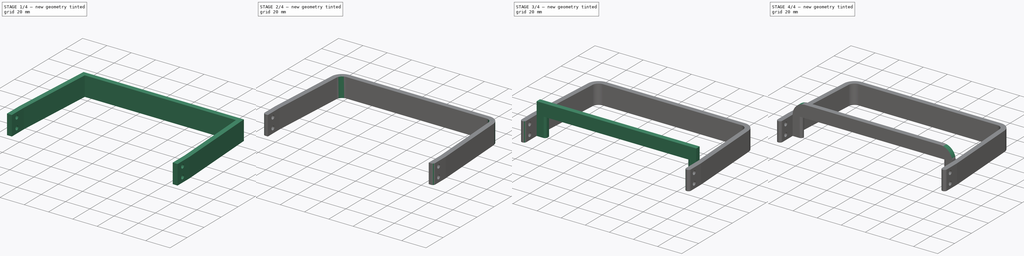
[diagram: build sequence overview — one tinted view per stage of 4, left to right]
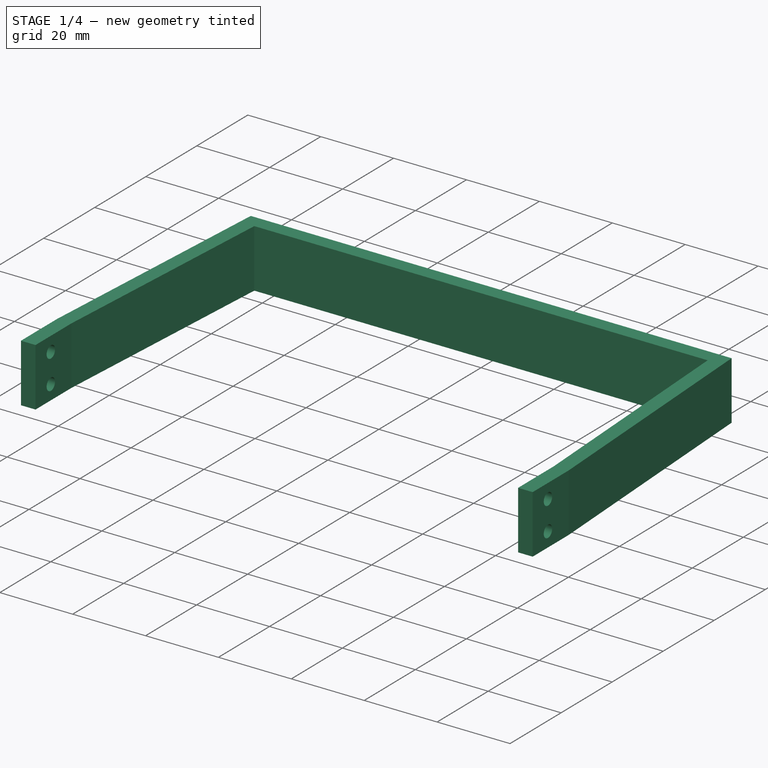
[diagram: stage 1 of 4 — iso view after this stage's code; geometry added in this stage tinted green]
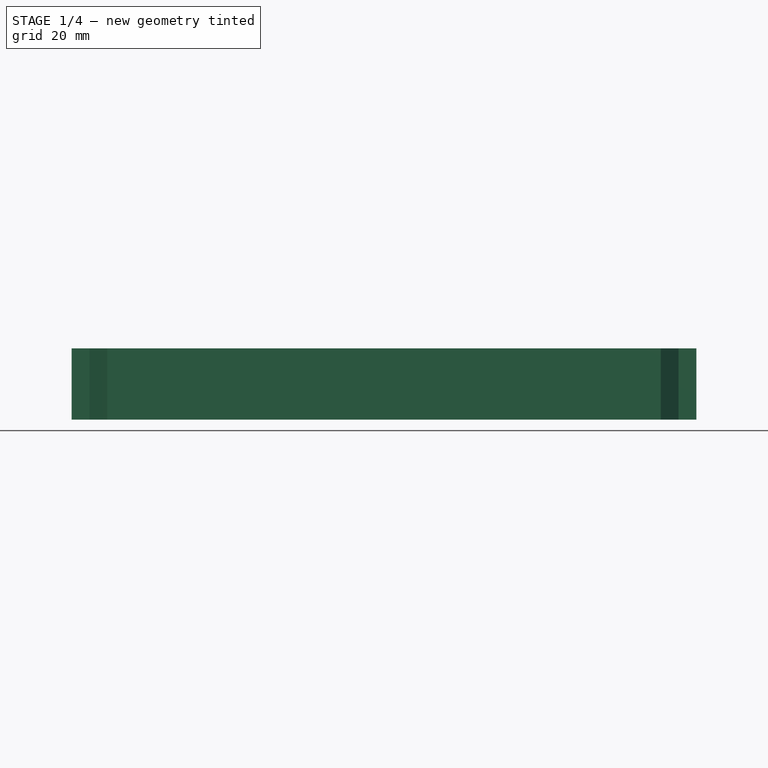
[diagram: stage 1 of 4 — front view after this stage's code; geometry added in this stage tinted green]
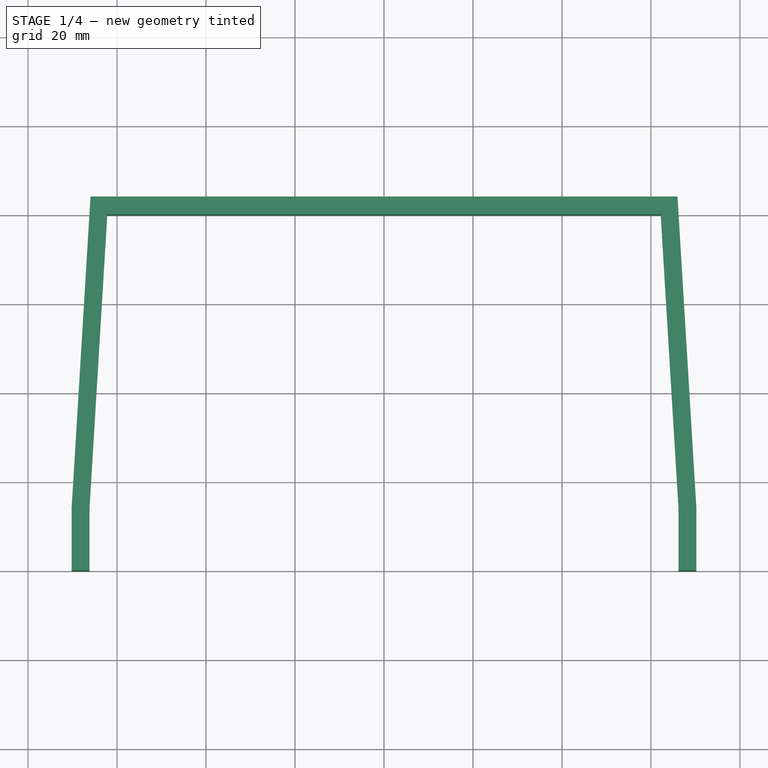
[diagram: stage 1 of 4 — top view after this stage's code; geometry added in this stage tinted green]
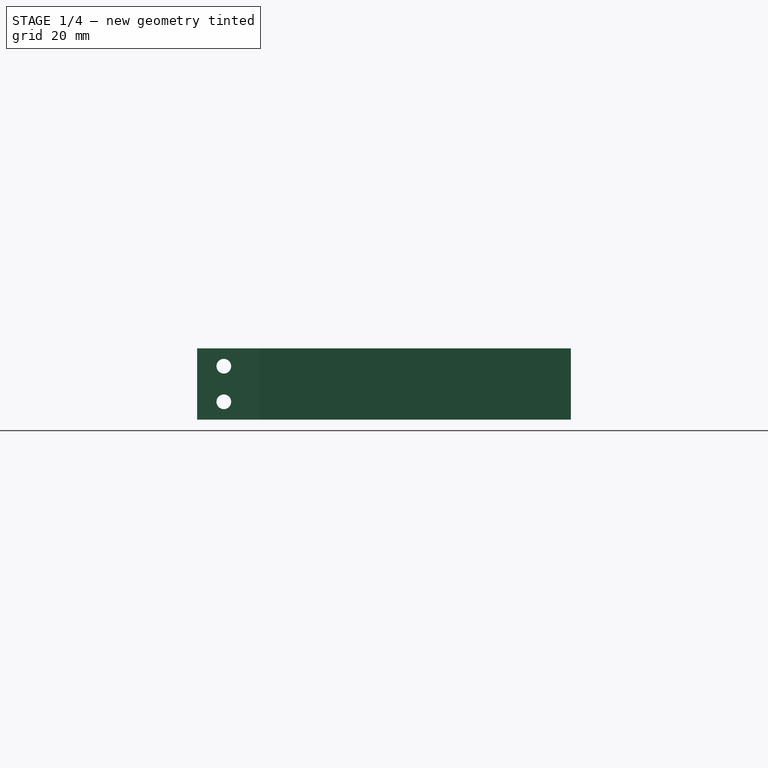
[diagram: stage 1 of 4 — right view after this stage's code; geometry added in this stage tinted green]
FCSTD DOCUMENT  (FreeCAD 0.18R16131 (Git))
Label: TopHandle
License: All rights reserved
LicenseURL: http://en.wikipedia.org/wiki/All_rights_reserved
objects: PartDesign::Fillet×7, Sketcher::SketchObject×3, PartDesign::Pad×2, PartDesign::Pocket×1, PartDesign::Plane×1, PartDesign::Body×1, App::Part×1
note: 18 computed .brp shape members not serialized (recipe doc carries the construction recipe); baked Part::Feature solids carry a one-line shape summary decoded from their .brp

FEATURE [Sketcher::SketchObject] Sketch
  MapMode = 5
  Support = -> [XY_Plane001]
  sketch-geometry (12):
    g0: LineSegment StartX=-70.2 StartY=0 StartZ=0 EndX=-66.2 EndY=0 EndZ=0
    g1: LineSegment StartX=-66.2 StartY=0 StartZ=0 EndX=-66.2 EndY=14 EndZ=0
    g2: LineSegment StartX=-70.2 StartY=14.1211 StartZ=0 EndX=-70.2 EndY=0 EndZ=0
    g3: LineSegment StartX=66.2 StartY=0 StartZ=0 EndX=70.2 EndY=0 EndZ=0
    g4: LineSegment StartX=70.2 StartY=0 StartZ=0 EndX=70.2 EndY=14.1211 EndZ=0
    g5: LineSegment StartX=66.2 StartY=14 StartZ=0 EndX=66.2 EndY=0 EndZ=0
    g6: LineSegment StartX=-66.2 StartY=14 StartZ=0 EndX=-62.2 EndY=80 EndZ=0
    g7: LineSegment StartX=66.2 StartY=14 StartZ=0 EndX=62.2 EndY=80 EndZ=0
    g8: LineSegment StartX=-62.2 StartY=80 StartZ=0 EndX=62.2 EndY=80 EndZ=0
    g9: LineSegment StartX=-70.2 StartY=14.1211 StartZ=0 EndX=-65.9649 EndY=84 EndZ=0
    g10: LineSegment StartX=-65.9649 StartY=84 StartZ=0 EndX=65.9649 EndY=84 EndZ=0
    g11: LineSegment StartX=65.9649 StartY=84 StartZ=0 EndX=70.2 EndY=14.1211 EndZ=0
  constraints (33):
    c: Coincident(g0,g1)
    c: Coincident(g2,g0)
    c: Horizontal(g0)
    c: Vertical(g1)
    c: Vertical(g2)
    c: PointOnObject(g0,g-1)
    c: Coincident(g3,g4)
    c: Coincident(g5,g3)
    c: Horizontal(g3)
    c: Vertical(g4)
    c: Vertical(g5)
    c: Coincident(g6,g1)
    c: Coincident(g7,g5)
    c: Coincident(g8,g6)
    c: Coincident(g8,g7)
    c: Coincident(g9,g2)
    c: Coincident(g10,g9)
    c: Coincident(g11,g10)
    c: Coincident(g11,g4)
    c: Distance(g1) = 14
    c: Equal(g0,g3)
    c: Symmetric(g0,g3,g-2)
    c: Distance(g0,g3) = 132.4
    c: Symmetric(g6,g7,g-2)
    c: Symmetric(g9,g10,g-2)
    c: Distance(g6,g10) = 4
    c: Distance(g6,g9) = 4
    c: Parallel(g7,g11)
    c: Parallel(g6,g9)
    c: Distance(g0) = 4
    c: DistanceX(g0,g6) = 4
    c: Equal(g5,g1)
    c: DistanceY(g-1,g6) = 80
FEATURE [PartDesign::Pad] Pad
  Length = 16
  Length2 = 100
  Midplane = true
  Profile = -> Sketch
  Type = 0
FEATURE [Sketcher::SketchObject] Sketch001
  MapMode = 5
  Placement = pos=(0,0,0) rot=(0.57735,0.57735,0.57735;2.0944rad)
  Support = -> [YZ_Plane001]
  sketch-geometry (2):
    g0: Circle CenterX=6 CenterY=4 CenterZ=0 NormalX=0 NormalY=0 NormalZ=1 AngleXU=0 Radius=1.65
    g1: Circle CenterX=6 CenterY=-4 CenterZ=0 NormalX=0 NormalY=0 NormalZ=1 AngleXU=0 Radius=1.65
  constraints (5):
    c: Symmetric(g0,g1,g-1)
    c: Equal(g0,g1)
    c: Radius(g0) = 1.65
    c: Distance(g0,g1) = 8
    c: DistanceX(g-2,g0) = 6
FEATURE [PartDesign::Pocket] Pocket
  BaseFeature = -> Pad
  Length = 5
  Length2 = 100
  Midplane = true
  Profile = -> Sketch001
  Type = 1
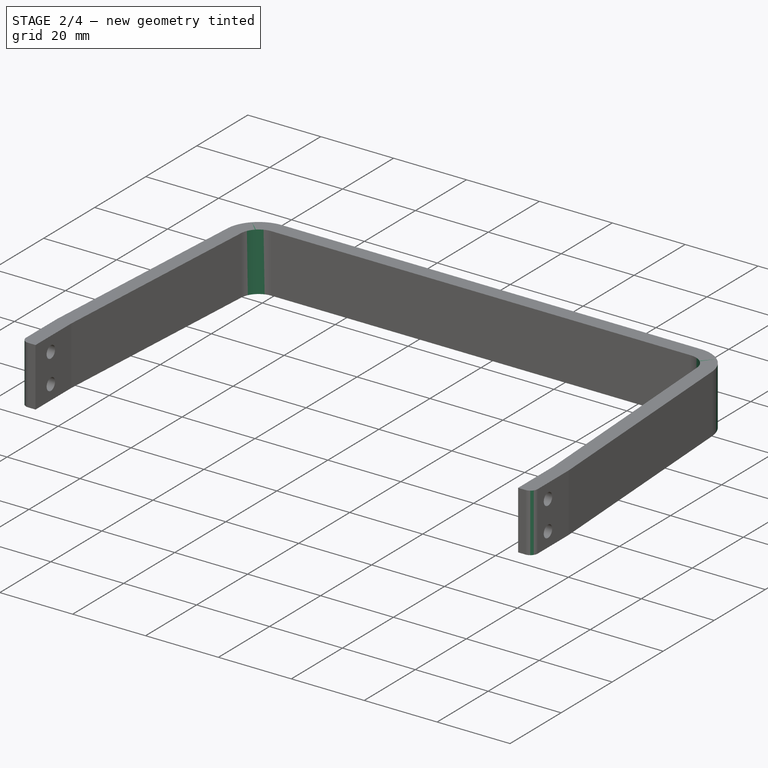
[diagram: stage 2 of 4 — iso view after this stage's code; geometry added in this stage tinted green]
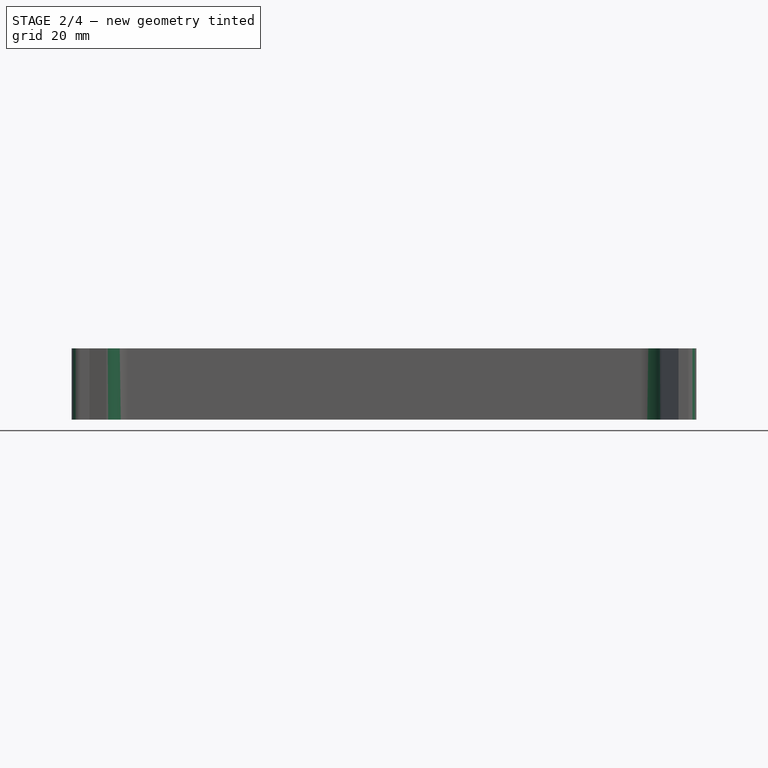
[diagram: stage 2 of 4 — front view after this stage's code; geometry added in this stage tinted green]
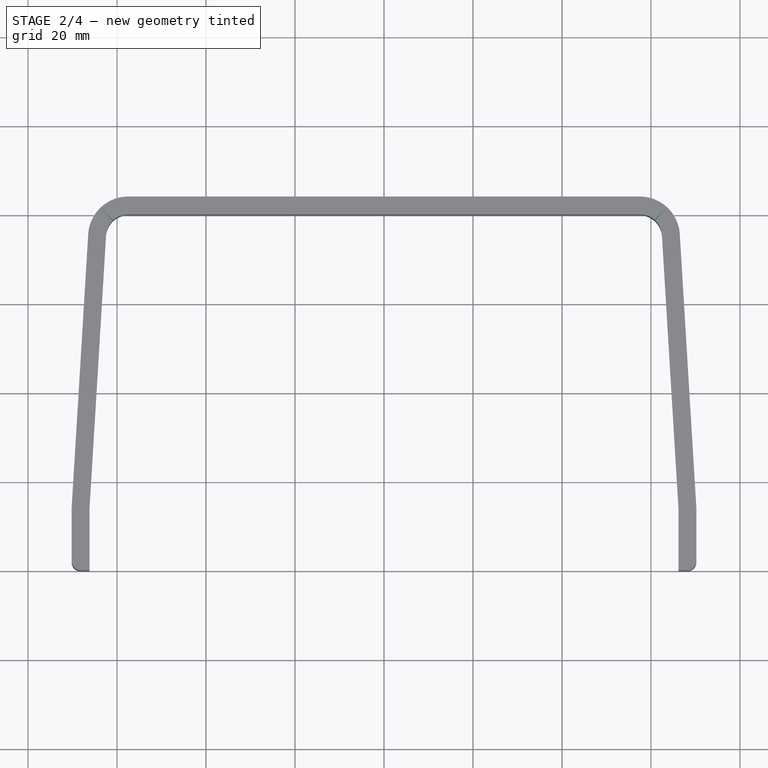
[diagram: stage 2 of 4 — top view after this stage's code; geometry added in this stage tinted green]
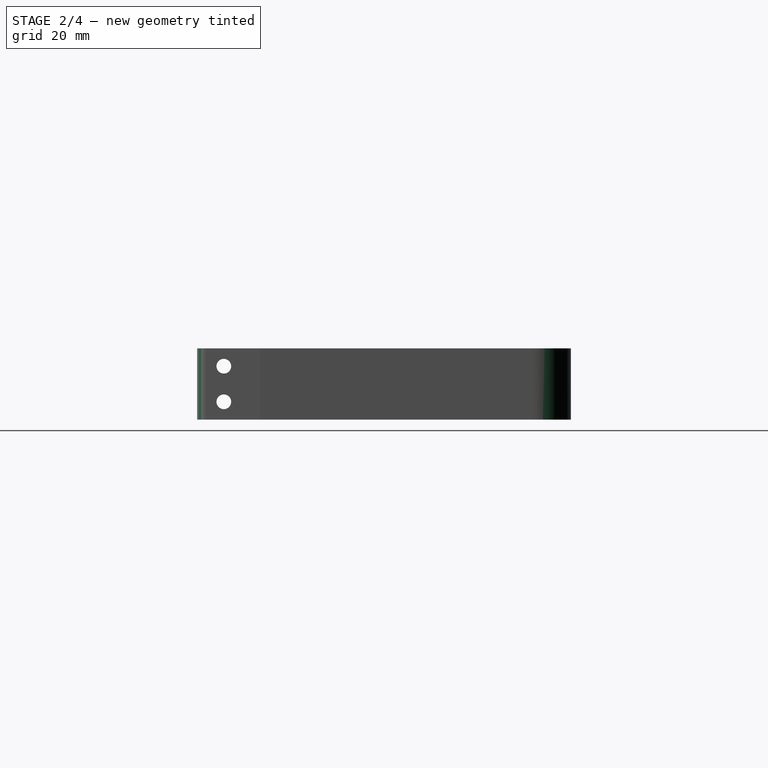
[diagram: stage 2 of 4 — right view after this stage's code; geometry added in this stage tinted green]
FEATURE [PartDesign::Fillet] Fillet001
  Base = -> Pocket [Edge7,Edge35]
  BaseFeature = -> Pocket
  Radius = 9
FEATURE [PartDesign::Fillet] Fillet002
  Base = -> Fillet001 [Edge45,Edge46]
  BaseFeature = -> Fillet001
  Radius = 5
FEATURE [PartDesign::Fillet] Fillet003
  Base = -> Fillet002 [Edge46,Edge28]
  BaseFeature = -> Fillet002
  Radius = 2
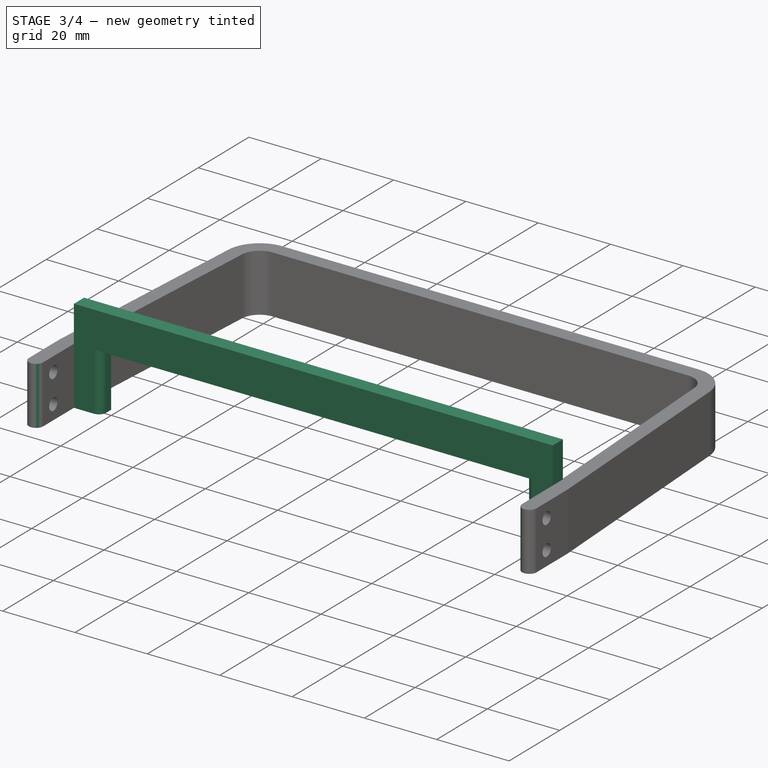
[diagram: stage 3 of 4 — iso view after this stage's code; geometry added in this stage tinted green]
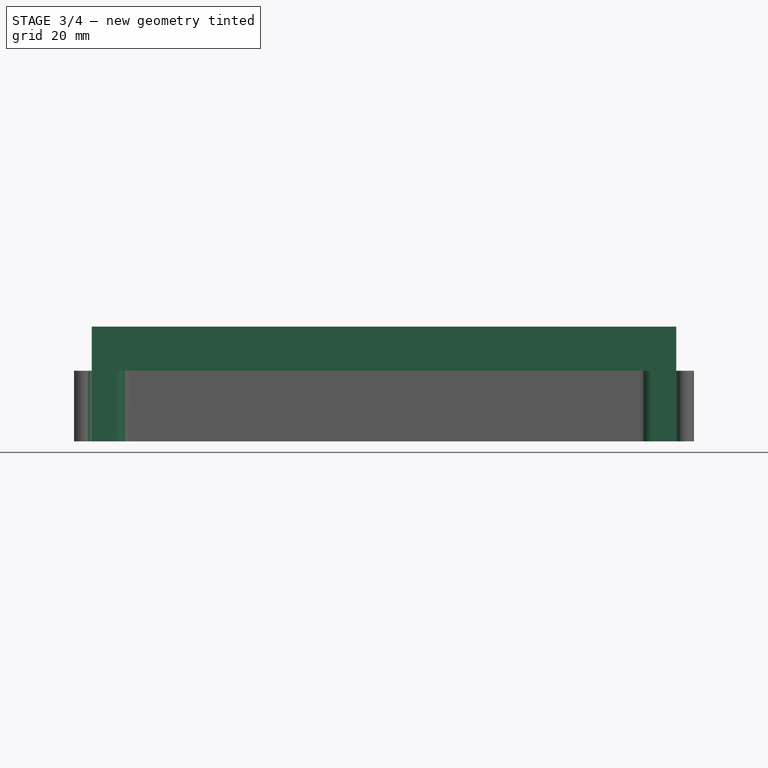
[diagram: stage 3 of 4 — front view after this stage's code; geometry added in this stage tinted green]
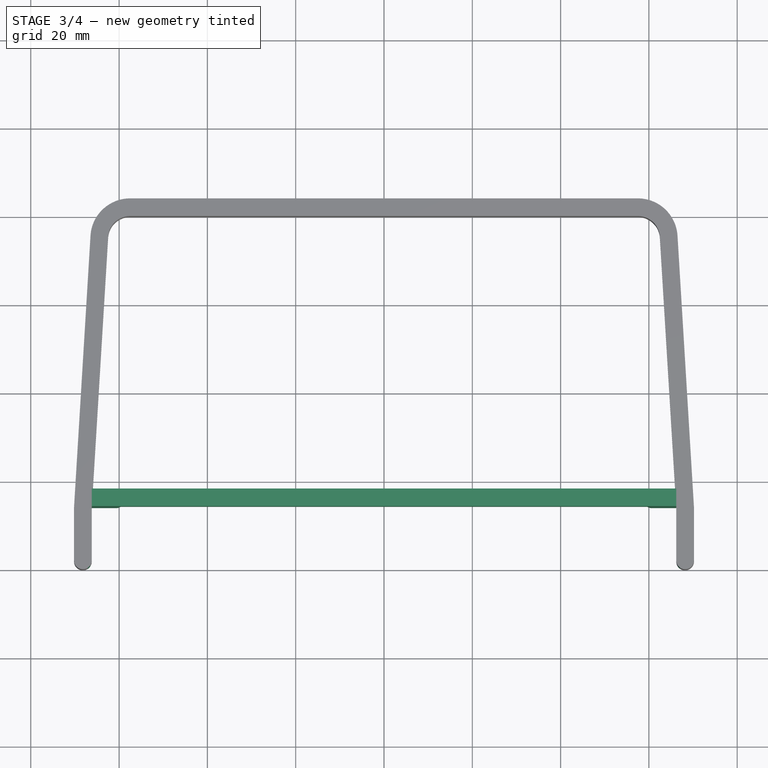
[diagram: stage 3 of 4 — top view after this stage's code; geometry added in this stage tinted green]
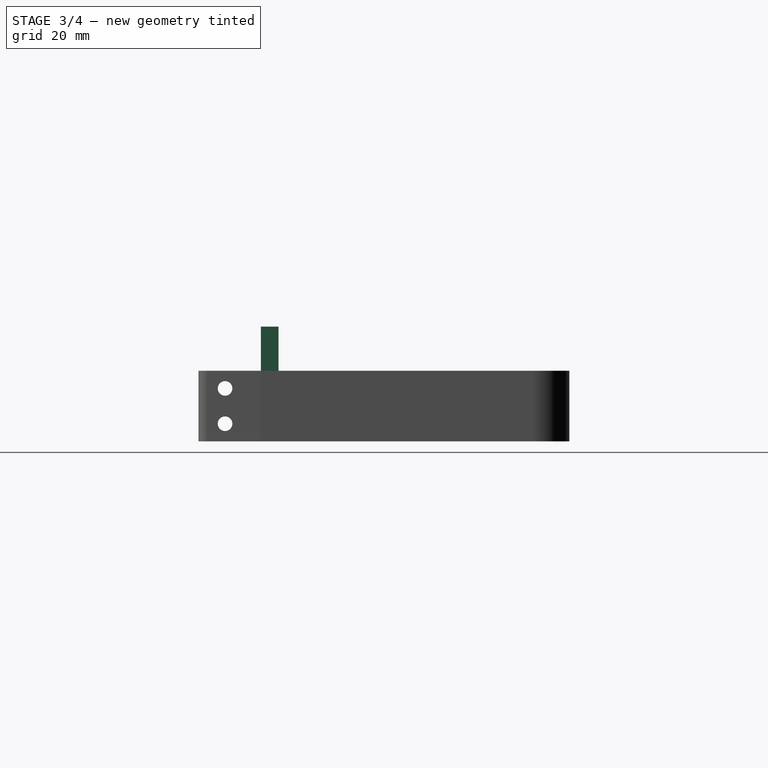
[diagram: stage 3 of 4 — right view after this stage's code; geometry added in this stage tinted green]
FEATURE [PartDesign::Fillet] Fillet004
  Base = -> Fillet003 [Edge52,Edge20]
  BaseFeature = -> Fillet003
  Radius = 1.99
FEATURE [PartDesign::Plane] DatumPlane
  AttachmentOffset = pos=(0,0,-14.1) rot=(0,0,1;0rad)
  Length = 152.94
  MapMode = 5
  Placement = pos=(0,14.1,3.1e-15) rot=(1,0,0;1.5708rad)
  ResizeMode = 0
  Support = -> [XZ_Plane001]
  Width = 40.5399
FEATURE [Sketcher::SketchObject] Sketch002
  MapMode = 5
  Placement = pos=(0,14.1,3.1e-15) rot=(1,0,0;1.5708rad)
  Support = -> [DatumPlane]
  sketch-geometry (8):
    g0: LineSegment StartX=-58.7 StartY=-8 StartZ=0 EndX=-66.2 EndY=-8 EndZ=0
    g1: LineSegment StartX=-66.2 StartY=-8 StartZ=0 EndX=-66.2 EndY=18 EndZ=0
    g2: LineSegment StartX=-58.7 StartY=8 StartZ=0 EndX=-58.7 EndY=-8 EndZ=0
    g3: LineSegment StartX=66.2 StartY=-8 StartZ=0 EndX=58.7 EndY=-8 EndZ=0
    g4: LineSegment StartX=58.7 StartY=-8 StartZ=0 EndX=58.7 EndY=8 EndZ=0
    g5: LineSegment StartX=66.2 StartY=-8 StartZ=0 EndX=66.2 EndY=18 EndZ=0
    g6: LineSegment StartX=66.2 StartY=18 StartZ=0 EndX=-66.2 EndY=18 EndZ=0
    g7: LineSegment StartX=-58.7 StartY=8 StartZ=0 EndX=58.7 EndY=8 EndZ=0
  constraints (21):
    c: Coincident(g0,g1)
    c: Coincident(g2,g0)
    c: Horizontal(g0)
    c: Vertical(g1)
    c: Coincident(g3,g4)
    c: Vertical(g4)
    c: Coincident(g5,g6)
    c: Horizontal(g6)
    c: Vertical(g5)
    c: Coincident(g5,g3)
    c: Coincident(g7,g2)
    c: Coincident(g7,g4)
    c: Horizontal(g7)
    c: Symmetric(g0,g3,g-2)
    c: Symmetric(g0,g3,g-2)
    c: Coincident(g1,g6)
    c: Distance(g0) = 7.5
    c: Symmetric(g0,g2,g-1)
    c: Distance(g2) = 16
    c: Distance(g6) = 132.4
    c: Distance(g1) = 26
FEATURE [PartDesign::Pad] Pad001
  BaseFeature = -> Fillet004
  Length = 4
  Length2 = 100
  Profile = -> Sketch002
  Reversed = true
  Type = 0
FEATURE [PartDesign::Fillet] Fillet005
  Base = -> Pad001 [Edge100,Edge94]
  BaseFeature = -> Pad001
  Radius = 1.99
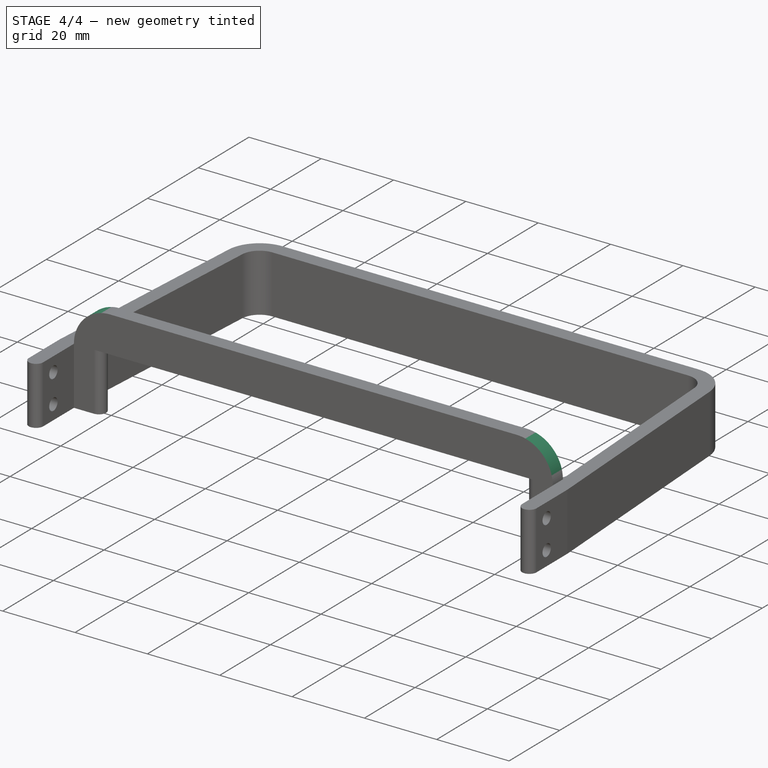
[diagram: stage 4 of 4 — iso view after this stage's code; geometry added in this stage tinted green]
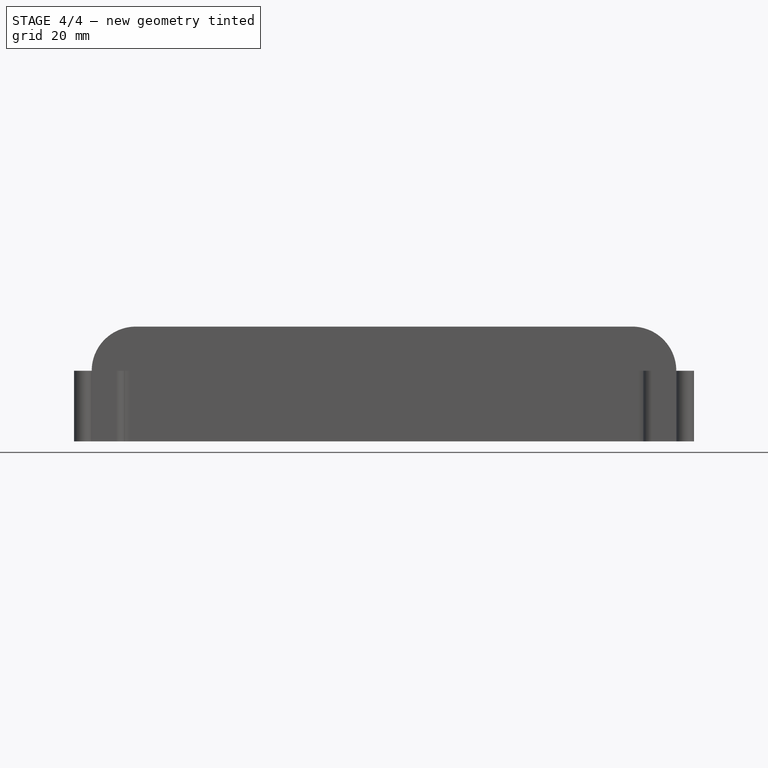
[diagram: stage 4 of 4 — front view after this stage's code; geometry added in this stage tinted green]
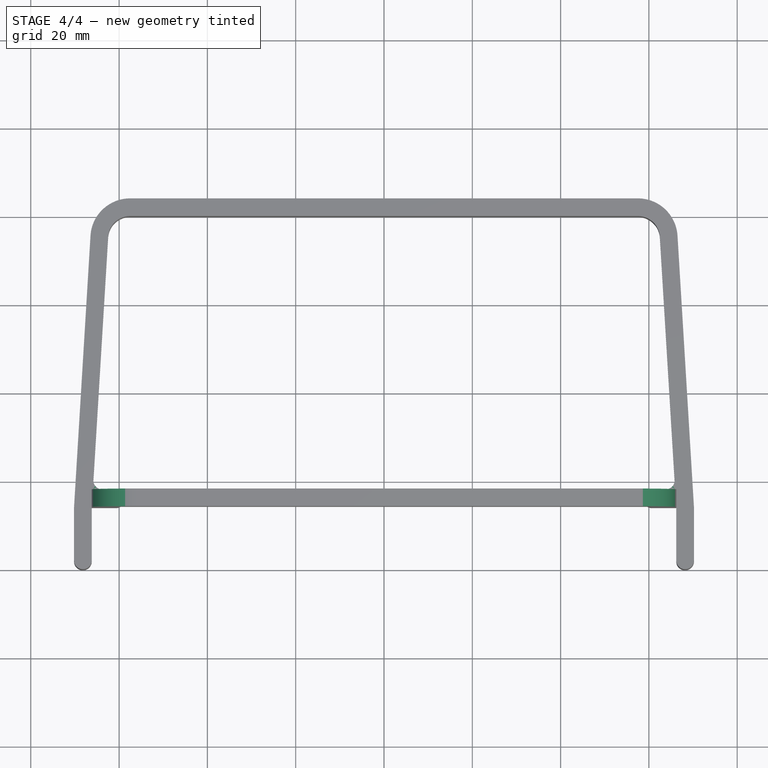
[diagram: stage 4 of 4 — top view after this stage's code; geometry added in this stage tinted green]
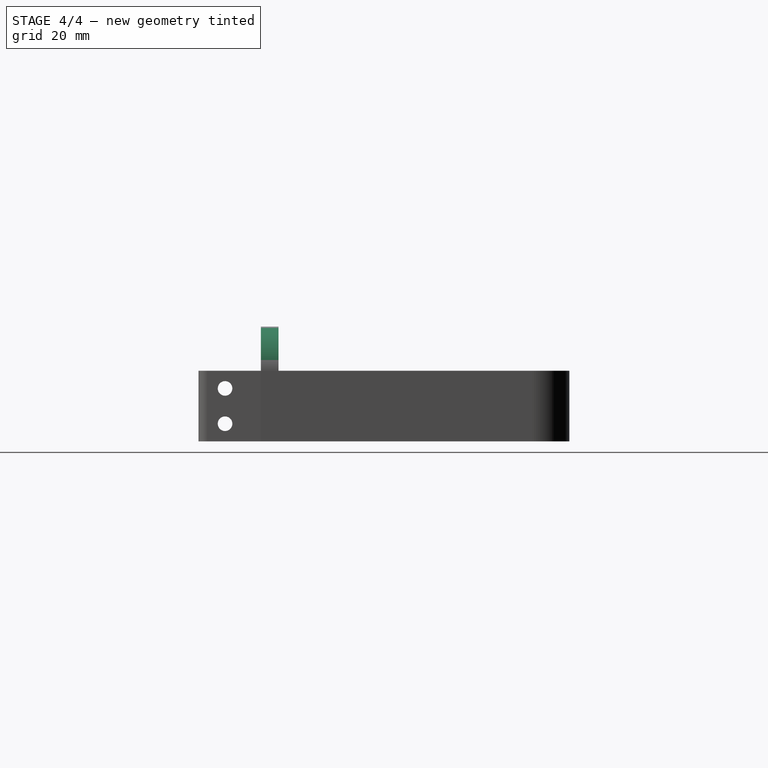
[diagram: stage 4 of 4 — right view after this stage's code; geometry added in this stage tinted green]
FEATURE [PartDesign::Fillet] Fillet006
  Base = -> Fillet005 [Edge70,Edge71,Edge68,Edge69]
  BaseFeature = -> Fillet005
  Radius = 2
FEATURE [PartDesign::Fillet] Fillet007
  Base = -> Fillet006 [Edge102,Edge103]
  BaseFeature = -> Fillet006
  Radius = 9.99
FEATURE [PartDesign::Body] Body
  Group = -> [Sketch,Pad,Sketch001,Pocket,Fillet001,Fillet002,Fillet003,Fillet004,DatumPlane,Sketch002,Pad001,Fillet005,Fillet006,Fillet007]
  Origin = -> Origin001
  Tip = -> Fillet007
FEATURE [App::Part] Part
  Group = -> [Body]
  Origin = -> Origin
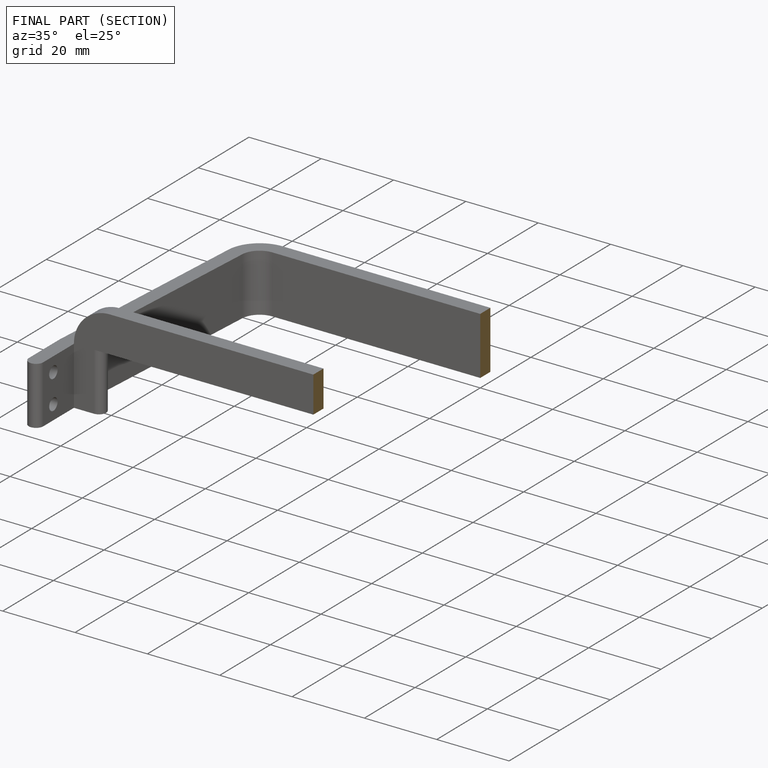
[diagram: finished part — half-section view (interior)]
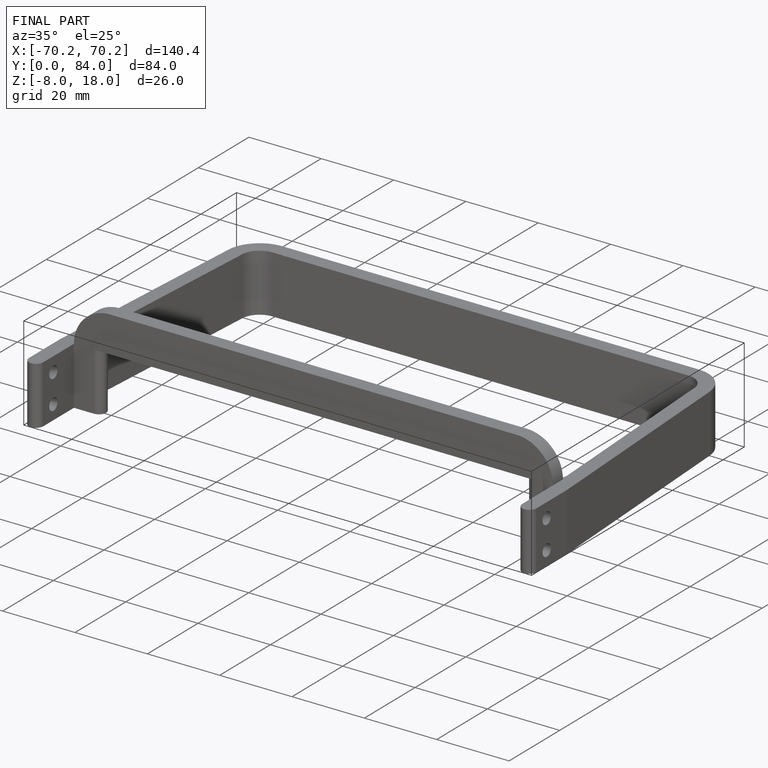
[diagram: finished part — iso view with bounding-box wireframe]
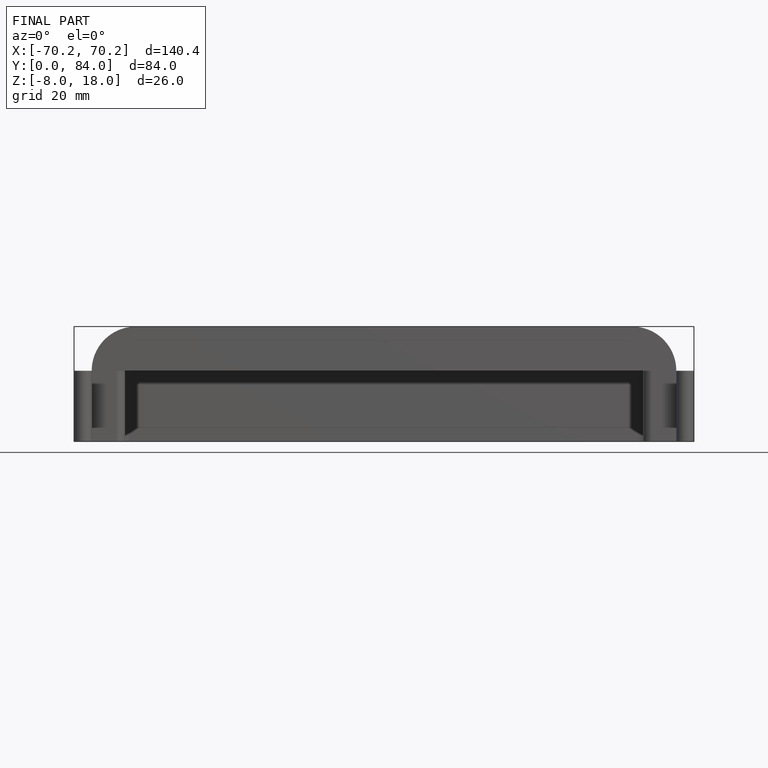
[diagram: finished part — front view with bounding-box wireframe]
